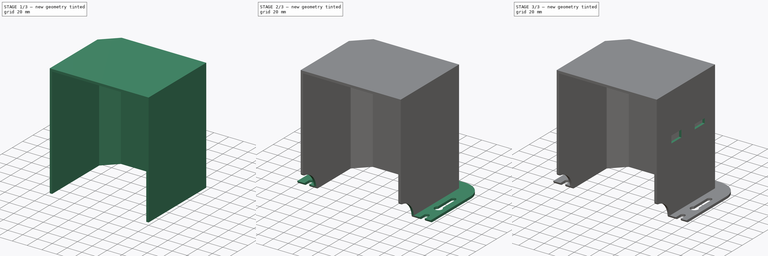
[diagram: build sequence overview — one tinted view per stage of 3, left to right]
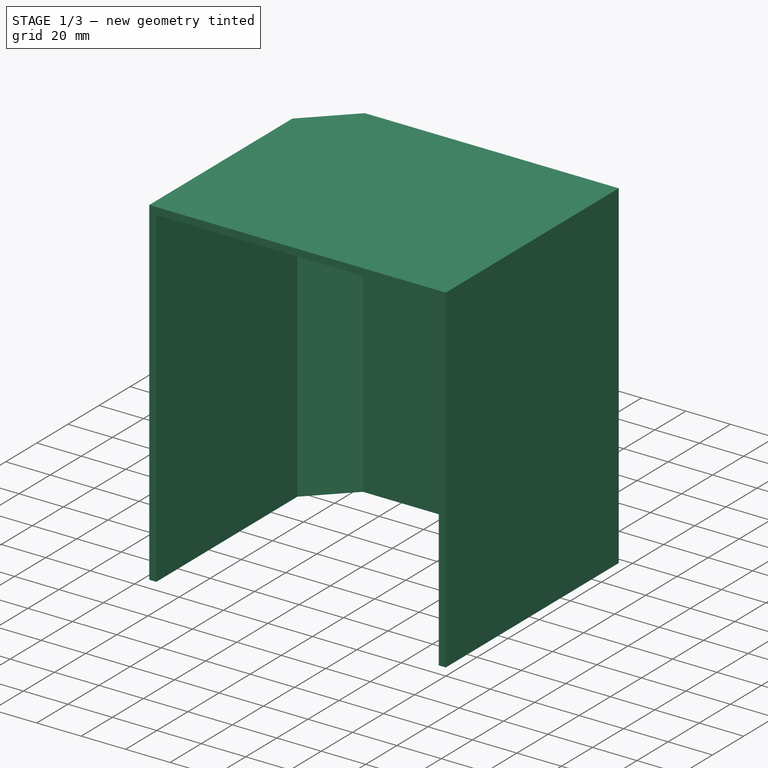
[diagram: stage 1 of 3 — iso view after this stage's code; geometry added in this stage tinted green]
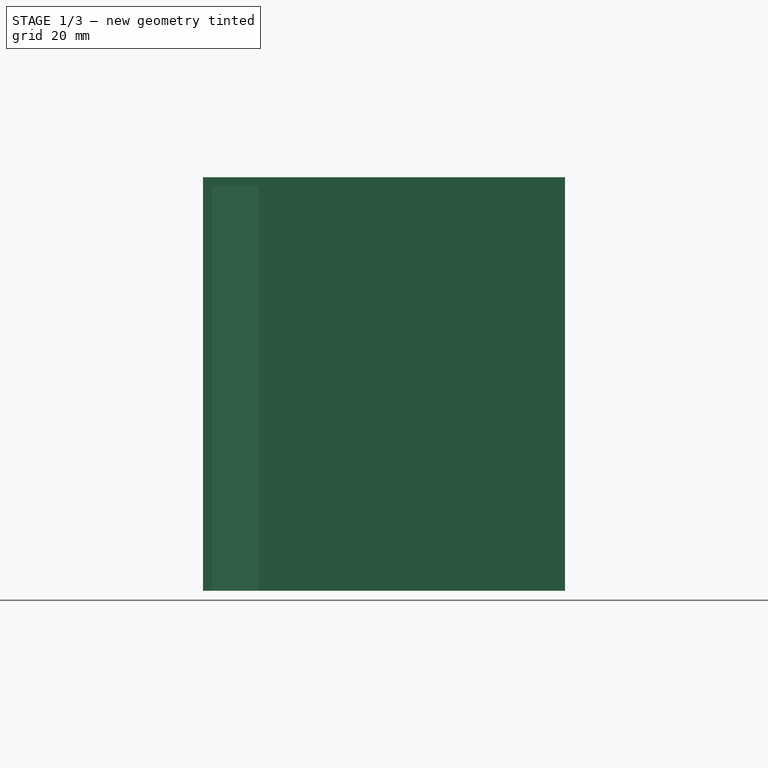
[diagram: stage 1 of 3 — front view after this stage's code; geometry added in this stage tinted green]
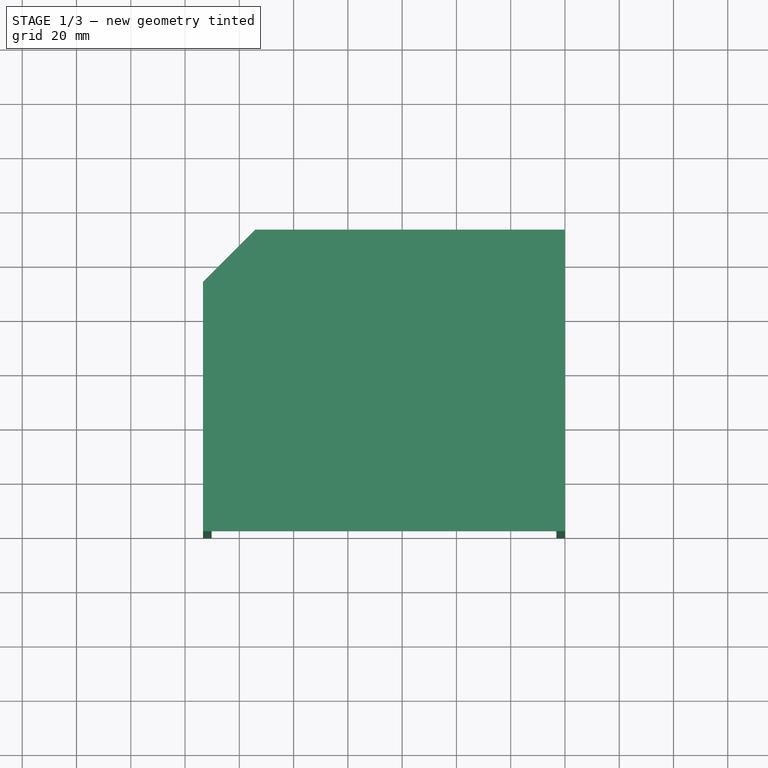
[diagram: stage 1 of 3 — top view after this stage's code; geometry added in this stage tinted green]
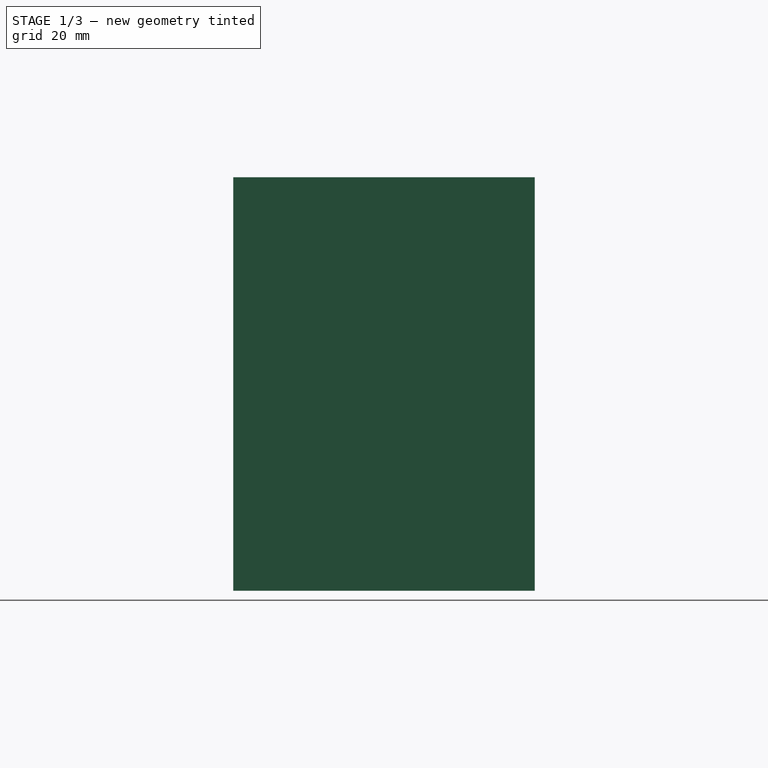
[diagram: stage 1 of 3 — right view after this stage's code; geometry added in this stage tinted green]
FCSTD DOCUMENT  (FreeCAD 0.20R29410 (Git))
Label: MotorAcousticBarrier
License: All rights reserved
LicenseURL: http://en.wikipedia.org/wiki/All_rights_reserved
objects: Sketcher::SketchObject×6, PartDesign::Pad×3, PartDesign::Pocket×3, PartDesign::Body×1
note: 19 computed .brp shape members not serialized (recipe doc carries the construction recipe); baked Part::Feature solids carry a one-line shape summary decoded from their .brp

FEATURE [Sketcher::SketchObject] Sketch  label="Main profile"
  FullyConstrained = true
  MapMode = 5
  Support = -> [XY_Plane]
  expr: Constraints[21] = 0.125"
  expr: Constraints[22] = 4.375"
  expr: Constraints[25] = 3.619"
  sketch-geometry (12):
    g0: LineSegment StartX=-133.375 StartY=0 StartZ=0 EndX=-133.375 EndY=91.9226 EndZ=0
    g1: LineSegment StartX=-133.375 StartY=91.9226 StartZ=0 EndX=-114.173 EndY=111.125 EndZ=0
    g2: LineSegment StartX=-114.173 StartY=111.125 StartZ=0 EndX=0 EndY=111.125 EndZ=0
    g3: LineSegment StartX=0 StartY=111.125 StartZ=0 EndX=0 EndY=0 EndZ=0
    g4: LineSegment StartX=0 StartY=0 StartZ=0 EndX=-3.175 EndY=0 EndZ=0
    g5: LineSegment StartX=-3.175 StartY=0 StartZ=0 EndX=-3.175 EndY=107.95 EndZ=0
    g6: LineSegment StartX=-3.175 StartY=107.95 StartZ=0 EndX=-112.858 EndY=107.95 EndZ=0
    g7: LineSegment StartX=-112.858 StartY=107.95 StartZ=0 EndX=-130.2 EndY=90.6075 EndZ=0
    g8: LineSegment StartX=-130.2 StartY=90.6075 StartZ=0 EndX=-130.2 EndY=0 EndZ=0
    g9: LineSegment StartX=-3.175 StartY=107.95 StartZ=0 EndX=-3.175 EndY=111.125 EndZ=0
    g10: LineSegment StartX=-130.2 StartY=90.6075 StartZ=0 EndX=-132.445 EndY=92.8525 EndZ=0
    g11: LineSegment StartX=-133.375 StartY=0 StartZ=0 EndX=-130.2 EndY=0 EndZ=0
  constraints (35):
    c: Vertical(g0)
    c: Coincident(g0,g1)
    c: Coincident(g1,g2)
    c: Horizontal(g2)
    c: Coincident(g2,g3)
    c: Vertical(g3)
    c: Coincident(g3,g4)
    c: Horizontal(g4)
    c: Coincident(g4,g5)
    c: Vertical(g5)
    c: Coincident(g5,g6)
    c: Horizontal(g6)
    c: Coincident(g6,g7)
    c: Coincident(g7,g8)
    c: Vertical(g8)
    c: Parallel(g1,g7)
    c: Angle(g8,g7) = 2.35619
    c: Coincident(g9,g5)
    c: PointOnObject(g9,g2)
    c: Vertical(g9)
    c: Equal(g9,g4)
    c: DistanceX(g4,g4) = 3.175
    c: DistanceY(g3,g3) = 111.125
    c: DistanceY(g4,g8) = 0
    c: Coincident(g3,g-1)
    c: DistanceY(g0,g0) = 91.9226
    c: DistanceX(g0,g2) = 133.375
    c: Coincident(g10,g7)
    c: PointOnObject(g10,g1)
    c: Perpendicular(g7,g10)
    c: Equal(g10,g4)
    c: Coincident(g11,g0)
    c: Coincident(g11,g8)
    c: Horizontal(g11)
    c: Equal(g11,g4)
FEATURE [PartDesign::Pad] Pad
  Direction = (0,0,1)
  Length = 149.225
  Length2 = 10
  Profile = -> Sketch
  ReferenceAxis = -> Sketch [N_Axis]
  Type = 0
  expr: Length = 6" - 0.125"
FEATURE [Sketcher::SketchObject] Sketch001  label="Top"
  ExternalGeometry = -> [Pad]
  FullyConstrained = true
  MapMode = 5
  Placement = pos=(0,0,149.225) rot=(0,0,1;0rad)
  Support = -> [Pad]
  sketch-geometry (5):
    g0: LineSegment StartX=-114.173 StartY=111.125 StartZ=0 EndX=0 EndY=111.125 EndZ=0
    g1: LineSegment StartX=0 StartY=111.125 StartZ=0 EndX=0 EndY=0 EndZ=0
    g2: LineSegment StartX=0 StartY=0 StartZ=0 EndX=-133.375 EndY=0 EndZ=0
    g3: LineSegment StartX=-133.375 StartY=0 StartZ=0 EndX=-133.375 EndY=91.9226 EndZ=0
    g4: LineSegment StartX=-133.375 StartY=91.9226 StartZ=0 EndX=-114.173 EndY=111.125 EndZ=0
  constraints (10):
    c: Coincident(g0,g-5)
    c: Coincident(g0,g-6)
    c: Coincident(g1,g0)
    c: Coincident(g1,g-1)
    c: Coincident(g2,g-3)
    c: Coincident(g3,g2)
    c: Coincident(g3,g-4)
    c: Coincident(g4,g0)
    c: Coincident(g1,g2)
    c: Coincident(g3,g4)
FEATURE [PartDesign::Pad] Pad001
  BaseFeature = -> Pad
  Direction = (0,0,1)
  Length = 3.175
  Length2 = 10
  Profile = -> Sketch001
  ReferenceAxis = -> Sketch001 [N_Axis]
  Type = 0
  expr: Length = 0.125"
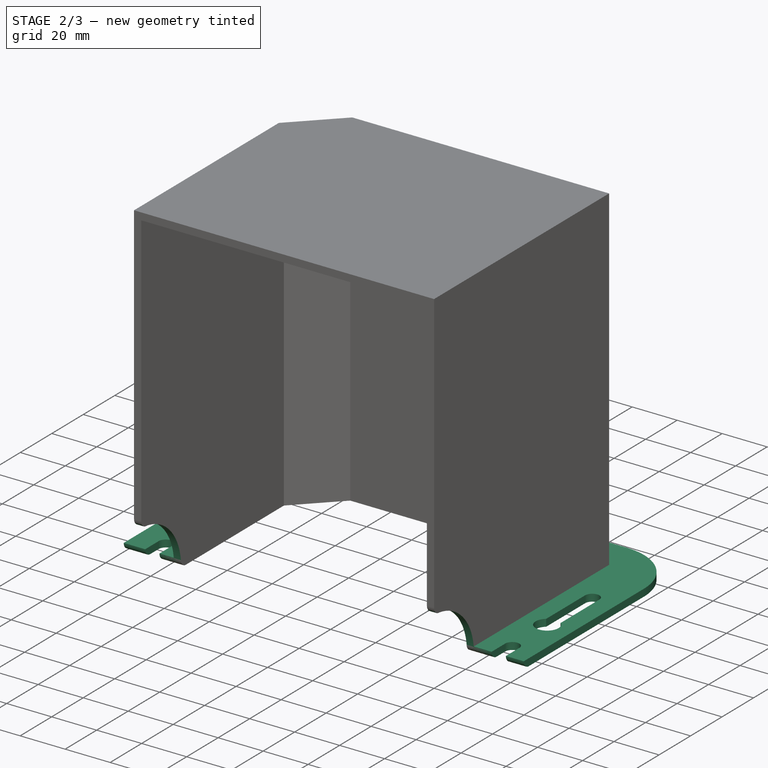
[diagram: stage 2 of 3 — iso view after this stage's code; geometry added in this stage tinted green]
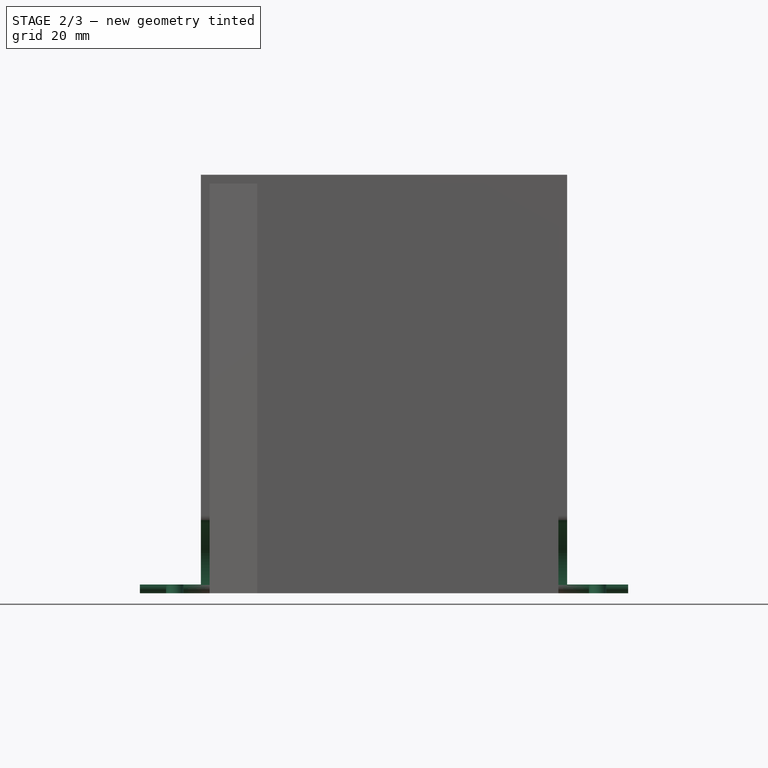
[diagram: stage 2 of 3 — front view after this stage's code; geometry added in this stage tinted green]
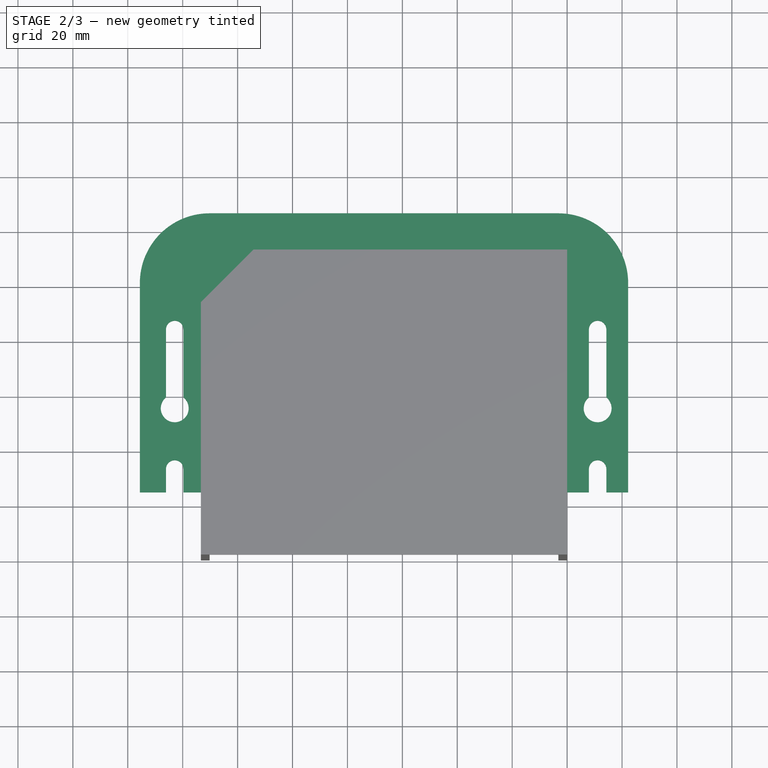
[diagram: stage 2 of 3 — top view after this stage's code; geometry added in this stage tinted green]
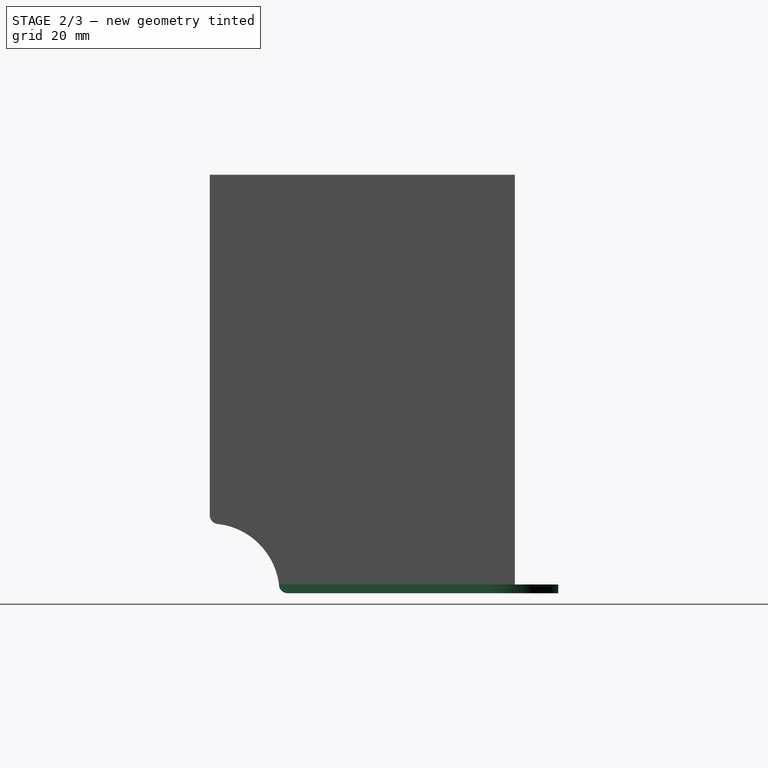
[diagram: stage 2 of 3 — right view after this stage's code; geometry added in this stage tinted green]
FEATURE [Sketcher::SketchObject] Sketch002
  ExternalGeometry = -> [Pad001]
  FullyConstrained = true
  MapMode = 5
  Placement = pos=(0,0,0) rot=(1,0,0;3.14159rad)
  Support = -> [Pad001]
  expr: Constraints[20] = 1"
  expr: Constraints[22] = 0.746"
  expr: Constraints[24] = 1"
  expr: Constraints[31] = 0.25" / 2
  expr: Constraints[32] = 0.4" / 2
  expr: Constraints[33] = 1.13"
  expr: Constraints[34] = 0.2"
  expr: Constraints[72] = 2"
  sketch-geometry (41):
    g0: LineSegment StartX=-130.2 StartY=0 StartZ=0 EndX=-130.2 EndY=-90.6075 EndZ=0
    g1: LineSegment StartX=-130.2 StartY=-90.6075 StartZ=0 EndX=-112.858 EndY=-107.95 EndZ=0
    g2: LineSegment StartX=-112.858 StartY=-107.95 StartZ=0 EndX=-3.175 EndY=-107.95 EndZ=0
    g3: LineSegment StartX=-3.175 StartY=-107.95 StartZ=0 EndX=-3.175 EndY=0 EndZ=0
    g4: LineSegment StartX=-3.175 StartY=0 StartZ=0 EndX=22.225 EndY=0 EndZ=0
    g5: LineSegment StartX=-155.6 StartY=0 StartZ=0 EndX=-155.6 EndY=-101.498 EndZ=0
    g6: LineSegment StartX=22.225 StartY=0 StartZ=0 EndX=22.225 EndY=-101.498 EndZ=0
    g7: ArcOfCircle CenterX=-130.2 CenterY=-101.498 CenterZ=0 NormalX=0 NormalY=0 NormalZ=1 AngleXU=0 Radius=25.4 StartAngle=3.14159 EndAngle=4.71239
    g8: ArcOfCircle CenterX=-3.175 CenterY=-101.498 CenterZ=0 NormalX=0 NormalY=0 NormalZ=1 AngleXU=0 Radius=25.4 StartAngle=4.71239 EndAngle=6.28319
    g9: LineSegment StartX=-130.2 StartY=-126.898 StartZ=0 EndX=-3.175 EndY=-126.898 EndZ=0
    g10: ArcOfCircle CenterX=-142.9 CenterY=-5.08 CenterZ=0 NormalX=0 NormalY=0 NormalZ=1 AngleXU=0 Radius=5.08 StartAngle=3.14159 EndAngle=4.03726
    g11: ArcOfCircle CenterX=-142.9 CenterY=-33.782 CenterZ=0 NormalX=0 NormalY=0 NormalZ=1 AngleXU=0 Radius=3.175 StartAngle=3.14159 EndAngle=6.28319
    g12: LineSegment StartX=-146.075 StartY=-9.04557 StartZ=0 EndX=-146.075 EndY=-33.782 EndZ=0
    g13: LineSegment StartX=-139.725 StartY=-33.782 StartZ=0 EndX=-139.725 EndY=-9.04557 EndZ=0
    g14: LineSegment StartX=-142.9 StartY=-5.08 StartZ=0 EndX=-142.9 EndY=-33.782 EndZ=0
    g15: ArcOfCircle CenterX=11.1125 CenterY=-5.08 CenterZ=0 NormalX=0 NormalY=0 NormalZ=1 AngleXU=0 Radius=5.08 StartAngle=3.14159 EndAngle=4.03726
    g16: ArcOfCircle CenterX=11.1125 CenterY=-33.782 CenterZ=0 NormalX=0 NormalY=0 NormalZ=1 AngleXU=0 Radius=3.175 StartAngle=3.14159 EndAngle=6.28319
    g17: LineSegment StartX=7.9375 StartY=-9.04557 StartZ=0 EndX=7.9375 EndY=-33.782 EndZ=0
    g18: LineSegment StartX=14.2875 StartY=-33.782 StartZ=0 EndX=14.2875 EndY=-9.04557 EndZ=0
    g19: LineSegment StartX=11.1125 StartY=-5.08 StartZ=0 EndX=11.1125 EndY=-33.782 EndZ=0
    g20: ArcOfCircle CenterX=11.1125 CenterY=-55.88 CenterZ=0 NormalX=0 NormalY=0 NormalZ=1 AngleXU=0 Radius=5.08 StartAngle=5.38752 EndAngle=10.3204
    g21: ArcOfCircle CenterX=11.1125 CenterY=-84.582 CenterZ=0 NormalX=0 NormalY=0 NormalZ=1 AngleXU=0 Radius=3.175 StartAngle=3.14159 EndAngle=6.28319
    g22: LineSegment StartX=7.9375 StartY=-59.8456 StartZ=0 EndX=7.9375 EndY=-84.582 EndZ=0
    g23: LineSegment StartX=14.2875 StartY=-84.582 StartZ=0 EndX=14.2875 EndY=-59.8456 EndZ=0
    g24: LineSegment StartX=11.1125 StartY=-55.88 StartZ=0 EndX=11.1125 EndY=-84.582 EndZ=0
    g25: ArcOfCircle CenterX=-142.9 CenterY=-55.88 CenterZ=0 NormalX=0 NormalY=0 NormalZ=1 AngleXU=0 Radius=5.08 StartAngle=5.38752 EndAngle=10.3204
    g26: ArcOfCircle CenterX=-142.9 CenterY=-84.582 CenterZ=0 NormalX=0 NormalY=0 NormalZ=1 AngleXU=0 Radius=3.175 StartAngle=3.14159 EndAngle=6.28319
    g27: LineSegment StartX=-146.075 StartY=-59.8456 StartZ=0 EndX=-146.075 EndY=-84.582 EndZ=0
    g28: LineSegment StartX=-139.725 StartY=-84.582 StartZ=0 EndX=-139.725 EndY=-59.8456 EndZ=0
    g29: LineSegment StartX=-142.9 StartY=-55.88 StartZ=0 EndX=-142.9 EndY=-84.582 EndZ=0
    g30: ArcOfCircle CenterX=-142.9 CenterY=-5.08 CenterZ=0 NormalX=0 NormalY=0 NormalZ=1 AngleXU=0 Radius=5.08 StartAngle=5.38752 EndAngle=6.28319
    g31: ArcOfCircle CenterX=11.1125 CenterY=-5.08 CenterZ=0 NormalX=0 NormalY=0 NormalZ=1 AngleXU=0 Radius=5.08 StartAngle=5.38752 EndAngle=6.28319
    g32: LineSegment StartX=-147.98 StartY=-5.08 StartZ=0 EndX=-147.98 EndY=0 EndZ=0
    g33: LineSegment StartX=-137.82 StartY=-5.08 StartZ=0 EndX=-137.82 EndY=0 EndZ=0
    g34: LineSegment StartX=-155.6 StartY=0 StartZ=0 EndX=-147.98 EndY=0 EndZ=0
    g35: LineSegment StartX=-137.82 StartY=0 StartZ=0 EndX=-130.2 EndY=0 EndZ=0
    g36: LineSegment StartX=-155.6 StartY=0 StartZ=0 EndX=-130.2 EndY=0 EndZ=0
    g37: LineSegment StartX=-3.175 StartY=0 StartZ=0 EndX=6.0325 EndY=0 EndZ=0
    g38: LineSegment StartX=6.0325 StartY=0 StartZ=0 EndX=6.0325 EndY=-5.08 EndZ=0
    g39: LineSegment StartX=16.1925 StartY=-5.08 StartZ=0 EndX=16.1925 EndY=0 EndZ=0
    g40: LineSegment StartX=16.1925 StartY=0 StartZ=0 EndX=22.225 EndY=0 EndZ=0
  constraints (118):
    c: Coincident(g5,g7)
    c: Coincident(g7,g9)
    c: Coincident(g8,g9)
    c: Coincident(g6,g8)
    c: Coincident(g2,g3)
    c: Coincident(g2,g-6)
    c: Coincident(g0,g1)
    c: Coincident(g0,g-4)
    c: Coincident(g1,g2)
    c: Coincident(g1,g-5)
    c: Vertical(g5)
    c: Vertical(g6)
    c: Horizontal(g4)
    c: Horizontal(g9)
    c: Vertical(g8,g8)
    c: Horizontal(g8,g6)
    c: Horizontal(g5,g7)
    c: Vertical(g7,g7)
    c: Coincident(g3,g4)
    c: Coincident(g4,g6)
    c: DistanceX(g4,g4) = 25.4
    c: Coincident(g3,g-7)
    c: DistanceY(g7,g1) = 18.9484
    c: Equal(g8,g7)
    c: Radius(g8) = 25.4
    c: Coincident(g12,g11)
    c: Vertical(g12)
    c: Coincident(g13,g11)
    c: Vertical(g13)
    c: Horizontal(g11,g11)
    c: Horizontal(g11,g11)
    c: Radius(g11) = 3.175
    c: Radius(g10) = 5.08
    c: DistanceY(g11,g10) = 28.702
    c: DistanceY(g10,g5) = 5.08
    c: Coincident(g14,g10)
    c: Coincident(g14,g11)
    c: Symmetric(g5,g0,g14)
    c: Coincident(g17,g16)
    c: Vertical(g17)
    c: Coincident(g18,g16)
    c: Vertical(g18)
    c: Horizontal(g16,g16)
    c: Horizontal(g16,g16)
    c: Equal(g11,g16) = 3.175
    c: Equal(g10,g15) = 5.08
    c: DistanceY(g16,g15) = 28.702
    c: Coincident(g19,g15)
    c: Coincident(g19,g16)
    c: Coincident(g22,g21)
    c: Vertical(g22)
    c: Coincident(g23,g21)
    c: Coincident(g23,g20)
    c: Vertical(g23)
    c: Horizontal(g20,g20)
    c: Horizontal(g21,g21)
    c: Horizontal(g21,g21)
    c: DistanceY(g21,g20) = 28.702
    c: Coincident(g24,g20)
    c: Coincident(g24,g21)
    c: Coincident(g27,g26)
    c: Vertical(g27)
    c: Coincident(g28,g26)
    c: Coincident(g28,g25)
    c: Vertical(g28)
    c: Horizontal(g25,g25)
    c: Horizontal(g26,g26)
    c: Horizontal(g26,g26)
    c: DistanceY(g26,g25) = 28.702
    c: Coincident(g29,g25)
    c: Coincident(g29,g26)
    c: Vertical(g25,g11)
    c: DistanceY(g25,g10) = 50.8
    c: Equal(g25,g10)
    c: Equal(g15,g20)
    c: Horizontal(g20,g25)
    c: Horizontal(g15,g10)
    c: Vertical(g15,g20)
    c: Symmetric(g-1,g4,g19)
    c: Coincident(g25,g27)
    c: Equal(g11,g26)
    c: Coincident(g20,g22)
    c: Equal(g21,g16)
    c: Coincident(g10,g12)
    c: Coincident(g30,g10)
    c: Coincident(g30,g13)
    c: Horizontal(g13,g10)
    c: Horizontal(g18,g17)
    c: Coincident(g15,g17)
    c: Coincident(g31,g15)
    c: Coincident(g31,g18)
    c: Horizontal(g30,g10)
    c: Vertical(g32)
    c: Coincident(g33,g30)
    c: Vertical(g33)
    c: Tangent(g32,g10) = 1.5708
    c: Coincident(g34,g5)
    c: Coincident(g34,g32)
    c: Horizontal(g34)
    c: Coincident(g35,g33)
    c: Coincident(g35,g0)
    c: Horizontal(g35)
    c: Coincident(g0,g-3)
    c: Horizontal(g32,g33)
    c: Coincident(g36,g5)
    c: Coincident(g36,g0)
    c: Equal(g36,g4)
    c: Horizontal(g15,g31)
    c: Horizontal(g37)
    c: Coincident(g37,g38)
    c: Coincident(g38,g15)
    c: Vertical(g38)
    c: Tangent(g31,g39) = -1.5708
    c: Coincident(g39,g40)
    c: Coincident(g40,g6)
    c: Vertical(g39)
    c: Horizontal(g40)
    c: Coincident(g3,g37)
FEATURE [PartDesign::Pad] Pad002
  BaseFeature = -> Pad001
  Direction = (0,0,-1)
  Length = 3.175
  Length2 = 10
  Profile = -> Sketch002
  ReferenceAxis = -> Sketch002 [N_Axis]
  Reversed = true
  Type = 0
  expr: Length = 0.125"
FEATURE [Sketcher::SketchObject] Sketch003  label="Corner Cutout"
  FullyConstrained = true
  MapMode = 5
  Placement = pos=(0,0,0) rot=(0.57735,0.57735,0.57735;2.0944rad)
  Support = -> [Pad002]
  expr: Constraints[10] = 0.125"
  expr: Constraints[9] = 1"
  sketch-geometry (7):
    g0: ArcOfCircle CenterX=0 CenterY=0 CenterZ=0 NormalX=0 NormalY=0 NormalZ=1 AngleXU=0 Radius=25.4 StartAngle=0.125328 EndAngle=1.44547
    g1: ArcOfCircle CenterX=3.175 CenterY=28.3758 CenterZ=0 NormalX=0 NormalY=0 NormalZ=1 AngleXU=0 Radius=3.175 StartAngle=3.14159 EndAngle=4.71239
    g2: ArcOfCircle CenterX=28.3758 CenterY=3.175 CenterZ=0 NormalX=0 NormalY=0 NormalZ=1 AngleXU=0 Radius=3.175 StartAngle=3.14159 EndAngle=4.71239
    g3: LineSegment StartX=-2.7e-15 StartY=28.3758 StartZ=0 EndX=-5 EndY=28.3758 EndZ=0
    g4: LineSegment StartX=-5 StartY=28.3758 StartZ=0 EndX=-5 EndY=-5 EndZ=0
    g5: LineSegment StartX=-5 StartY=-5 StartZ=0 EndX=28.3758 EndY=-5 EndZ=0
    g6: LineSegment StartX=28.3758 StartY=-5 StartZ=0 EndX=28.3758 EndY=0 EndZ=0
  constraints (23):
    c: Coincident(g0,g-1)
    c: PointOnObject(g1,g-2)
    c: Coincident(g2,g0)
    c: Coincident(g0,g1)
    c: Vertical(g1,g0)
    c: Horizontal(g1,g1)
    c: Vertical(g2,g2)
    c: Horizontal(g0,g2)
    c: Equal(g1,g2)
    c: Radius(g0) = 25.4
    c: Radius(g1) = 3.175
    c: PointOnObject(g2,g-1)
    c: Horizontal(g3)
    c: Coincident(g3,g4)
    c: Coincident(g4,g5)
    c: Horizontal(g5)
    c: Coincident(g5,g6)
    c: Coincident(g6,g2)
    c: Coincident(g1,g3)
    c: Equal(g3,g6)
    c: Vertical(g4)
    c: DistanceY(g6,g6) = 5
    c: Vertical(g6)
FEATURE [PartDesign::Pocket] Pocket
  BaseFeature = -> Pad002
  Direction = (-1,0,0)
  Length = 5
  Length2 = 5
  Midplane = true
  Profile = -> Sketch003
  ReferenceAxis = -> Sketch003 [N_Axis]
  Type = 1
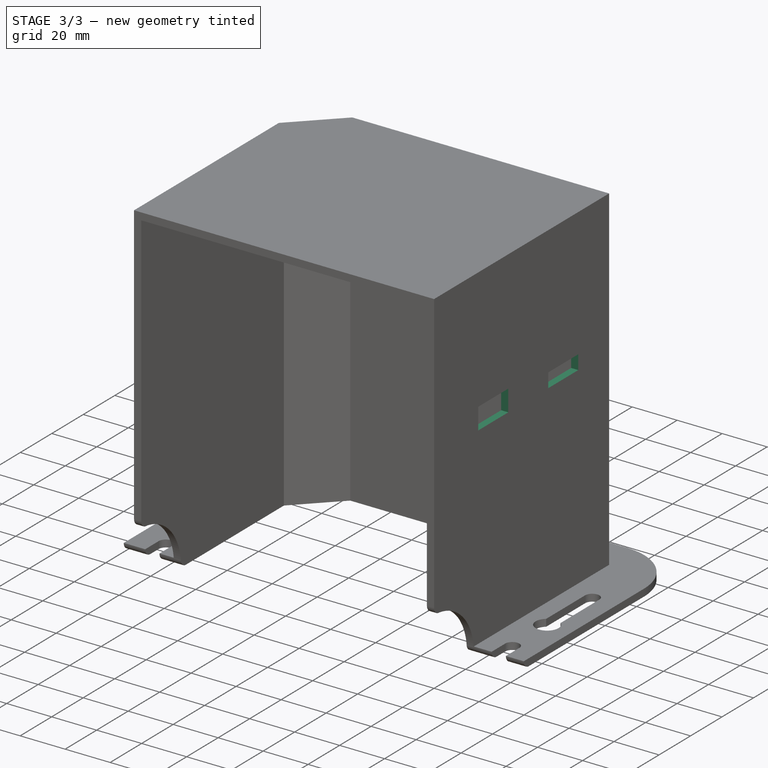
[diagram: stage 3 of 3 — iso view after this stage's code; geometry added in this stage tinted green]
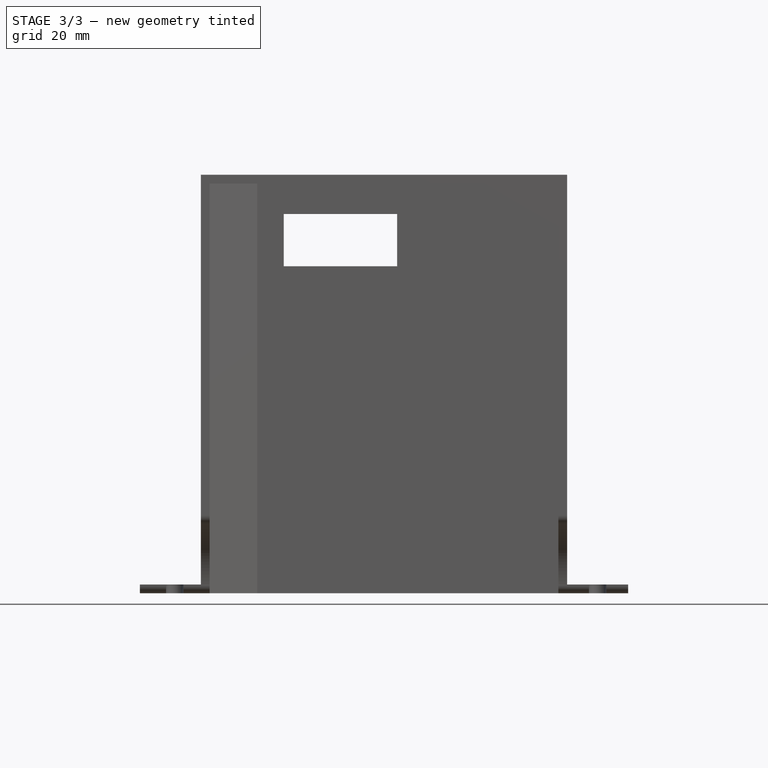
[diagram: stage 3 of 3 — front view after this stage's code; geometry added in this stage tinted green]
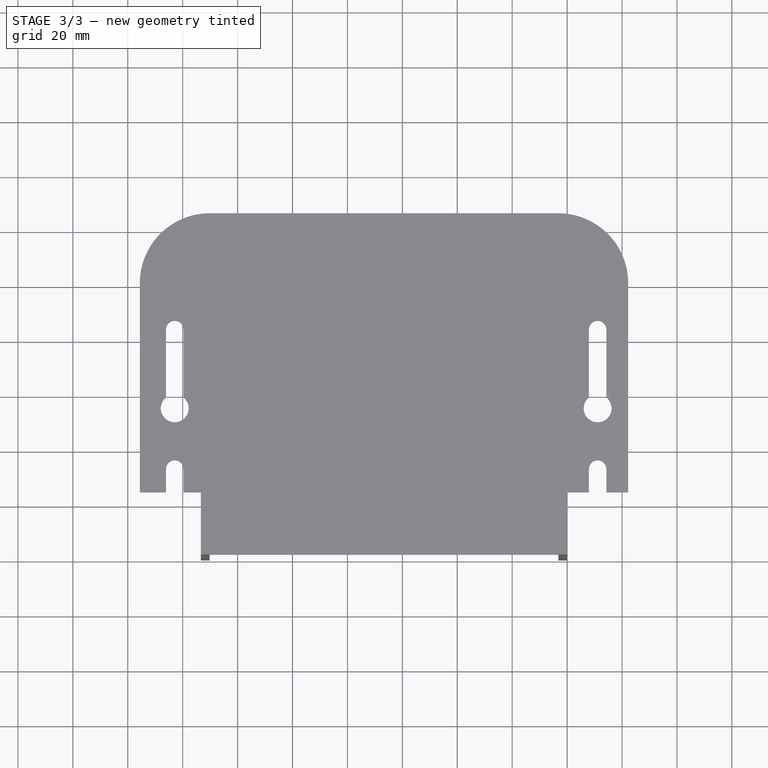
[diagram: stage 3 of 3 — top view after this stage's code; geometry added in this stage tinted green]
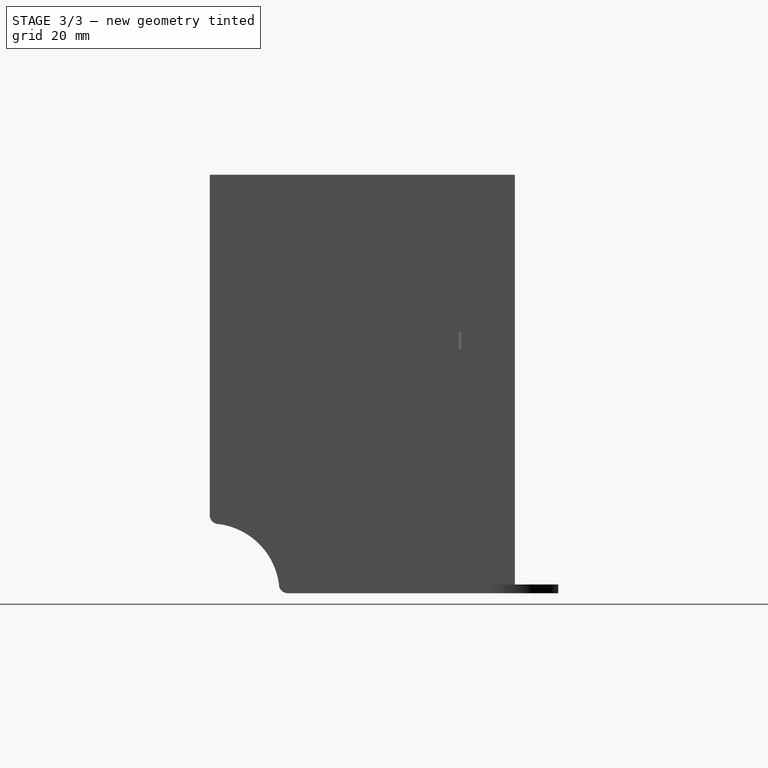
[diagram: stage 3 of 3 — right view after this stage's code; geometry added in this stage tinted green]
FEATURE [Sketcher::SketchObject] Sketch004  label="Ribbon cable cutout"
  FullyConstrained = true
  MapMode = 5
  Placement = pos=(0,0,0) rot=(0.57735,0.57735,0.57735;2.0944rad)
  Support = -> [Pocket]
  expr: Constraints[16] = 3.5"
  expr: Constraints[17] = 1.105"
  expr: Constraints[18] = 0.75"
  expr: Constraints[19] = 0.375"
  expr: Constraints[20] = 3.5"
  expr: Constraints[21] = 2.855"
  expr: Constraints[22] = 0.25"
  expr: Constraints[23] = 0.75"
  sketch-geometry (8):
    g0: LineSegment StartX=28.067 StartY=98.425 StartZ=0 EndX=47.117 EndY=98.425 EndZ=0
    g1: LineSegment StartX=47.117 StartY=98.425 StartZ=0 EndX=47.117 EndY=88.9 EndZ=0
    g2: LineSegment StartX=47.117 StartY=88.9 StartZ=0 EndX=28.067 EndY=88.9 EndZ=0
    g3: LineSegment StartX=28.067 StartY=88.9 StartZ=0 EndX=28.067 EndY=98.425 EndZ=0
    g4: LineSegment StartX=72.517 StartY=95.25 StartZ=0 EndX=91.567 EndY=95.25 EndZ=0
    g5: LineSegment StartX=91.567 StartY=95.25 StartZ=0 EndX=91.567 EndY=88.9 EndZ=0
    g6: LineSegment StartX=91.567 StartY=88.9 StartZ=0 EndX=72.517 EndY=88.9 EndZ=0
    g7: LineSegment StartX=72.517 StartY=88.9 StartZ=0 EndX=72.517 EndY=95.25 EndZ=0
  constraints (24):
    c: Coincident(g0,g1)
    c: Coincident(g1,g2)
    c: Coincident(g2,g3)
    c: Coincident(g3,g0)
    c: Horizontal(g0)
    c: Horizontal(g2)
    c: Vertical(g1)
    c: Vertical(g3)
    c: Coincident(g4,g5)
    c: Coincident(g5,g6)
    c: Coincident(g6,g7)
    c: Coincident(g7,g4)
    c: Horizontal(g4)
    c: Horizontal(g6)
    c: Vertical(g5)
    c: Vertical(g7)
    c: DistanceY(g2) = 88.9
    c: DistanceX(g2) = 28.067
    c: DistanceX(g2,g2) = 19.05
    c: DistanceY(g1,g1) = 9.525
    c: DistanceY(g6) = 88.9
    c: DistanceX(g6) = 72.517
    c: DistanceY(g5,g5) = 6.35
    c: DistanceX(g4,g4) = 19.05
FEATURE [PartDesign::Pocket] Pocket001
  BaseFeature = -> Pocket
  Direction = (-1,0,0)
  Length = 3.175
  Length2 = 5
  Profile = -> Sketch004
  ReferenceAxis = -> Sketch004 [N_Axis]
  Type = 0
  expr: Length = 0.125"
FEATURE [Sketcher::SketchObject] Sketch005
  FullyConstrained = true
  MapMode = 5
  Placement = pos=(0,111.125,0) rot=(0,0.707107,0.707107;3.14159rad)
  Support = -> [Pocket001]
  expr: Constraints[10] = 2.438"
  expr: Constraints[11] = 1.625"
  expr: Constraints[8] = 4.688"
  expr: Constraints[9] = 0.75"
  sketch-geometry (4):
    g0: LineSegment StartX=61.9252 StartY=138.125 StartZ=0 EndX=103.2 EndY=138.125 EndZ=0
    g1: LineSegment StartX=103.2 StartY=138.125 StartZ=0 EndX=103.2 EndY=119.075 EndZ=0
    g2: LineSegment StartX=103.2 StartY=119.075 StartZ=0 EndX=61.9252 EndY=119.075 EndZ=0
    g3: LineSegment StartX=61.9252 StartY=119.075 StartZ=0 EndX=61.9252 EndY=138.125 EndZ=0
  constraints (12):
    c: Coincident(g0,g1)
    c: Coincident(g1,g2)
    c: Coincident(g2,g3)
    c: Coincident(g3,g0)
    c: Horizontal(g0)
    c: Horizontal(g2)
    c: Vertical(g1)
    c: Vertical(g3)
    c: DistanceY(g2) = 119.075
    c: DistanceY(g3,g3) = 19.05
    c: DistanceX(g2) = 61.9252
    c: DistanceX(g2,g2) = 41.275
FEATURE [PartDesign::Pocket] Pocket002
  BaseFeature = -> Pocket001
  Direction = (0,-1,2e-16)
  Length = 5
  Length2 = 5
  Profile = -> Sketch005
  ReferenceAxis = -> Sketch005 [N_Axis]
  Type = 1
FEATURE [PartDesign::Body] Body
  Group = -> [Sketch,Pad,Sketch001,Pad001,Sketch002,Pad002,Sketch003,Pocket,Sketch004,Pocket001,Sketch005,Pocket002]
  Origin = -> Origin
  Tip = -> Pocket002
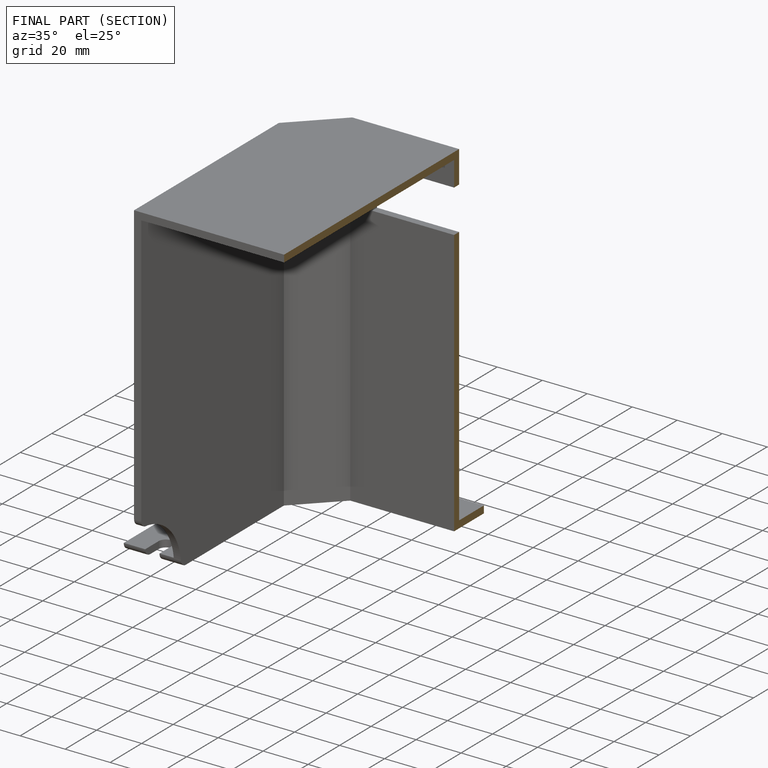
[diagram: finished part — half-section view (interior)]
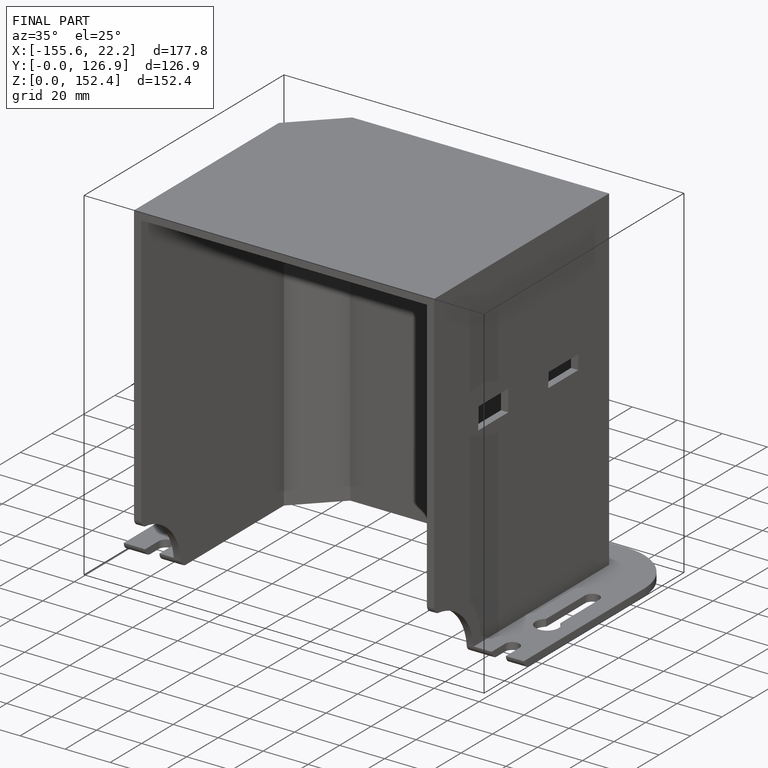
[diagram: finished part — iso view with bounding-box wireframe]
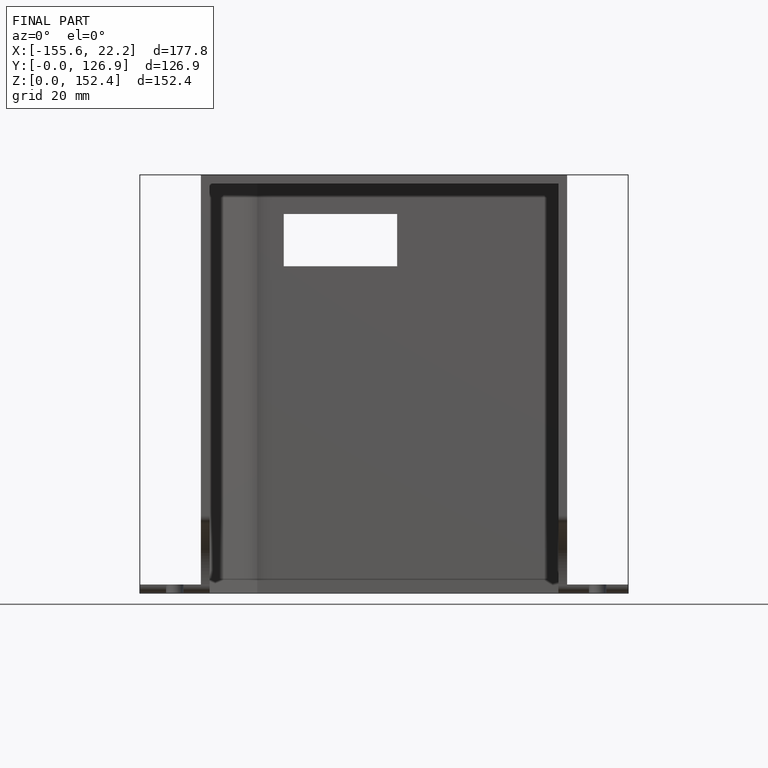
[diagram: finished part — front view with bounding-box wireframe]
